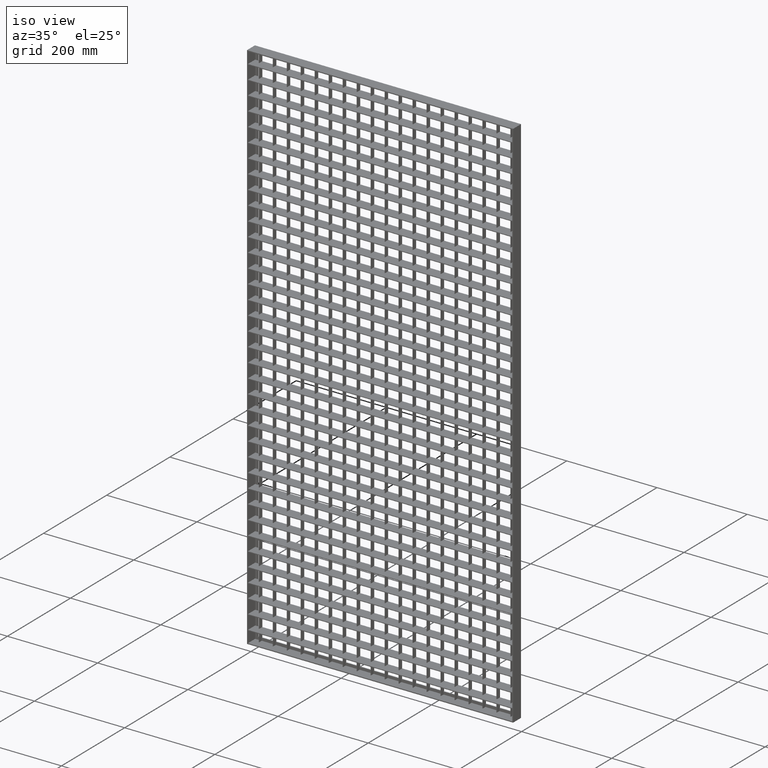
[diagram: clean part render]
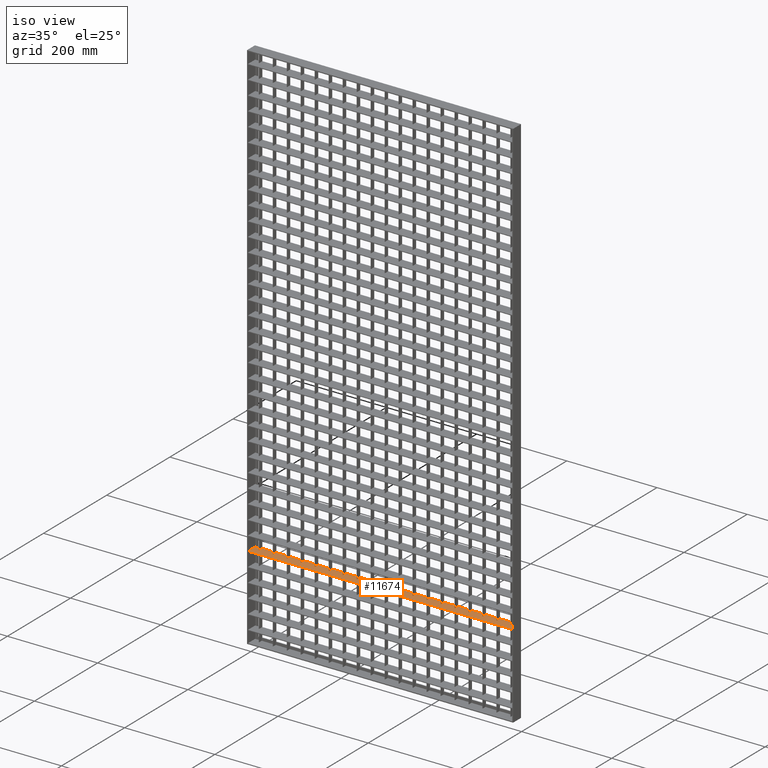
[diagram: same view with one face highlighted and labeled with its STEP entity id]
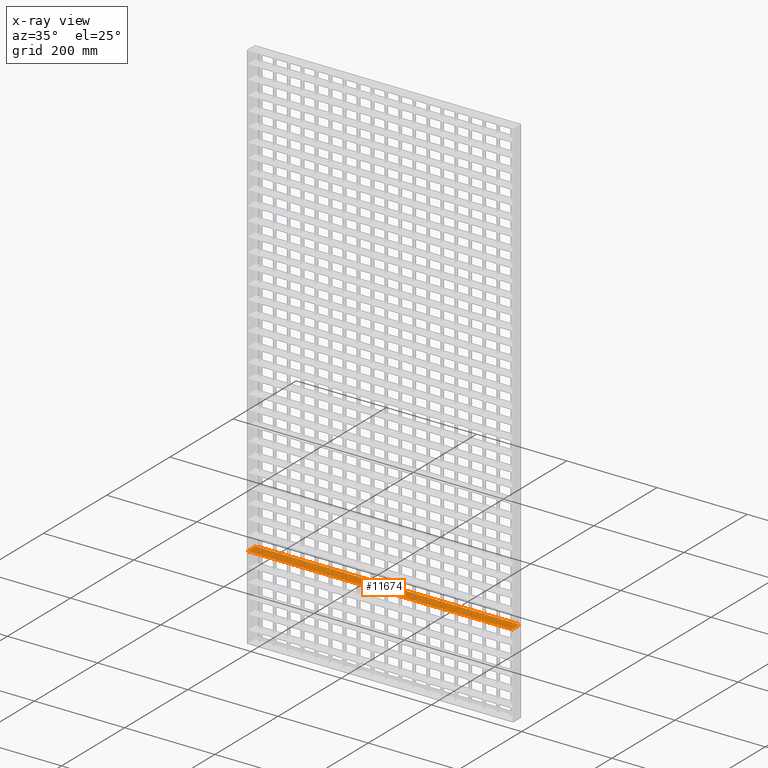
[diagram: x-ray of the same camera — body ghosted, the highlighted face saturated]
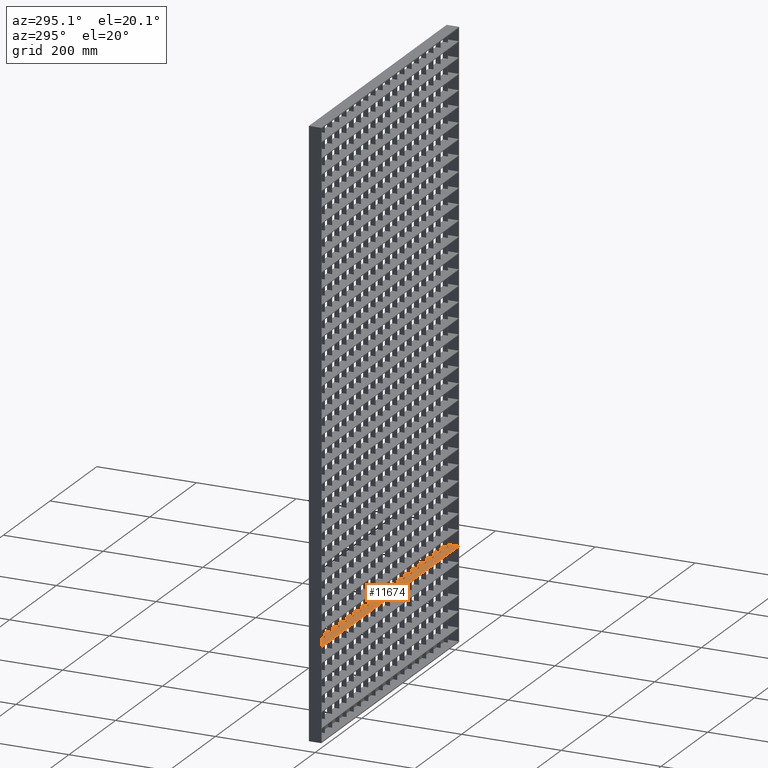
[diagram: same view with one face highlighted and labeled with its STEP entity id]
A machine part, iso view. The second image highlights one B-rep face of the part: STEP entity #11674.
The next image is the same camera in x-ray: the body ghosted, the highlighted face saturated — about 0% of this face is hidden behind the body in this view.
A second angle (auxiliary view) of the same face is appended — the face is thin or edge-on in the first view.
In plain terms, the highlighted planar face has unit normal (0, 0, -1).
Its self-contained STEP definition (entity closure, byte-faithful):
#42 = VERTEX_POINT ( 'NONE', #82207 ) ;
#110 = VECTOR ( 'NONE', #4359, 1000.000000000000000 ) ;
#202 = CARTESIAN_POINT ( 'NONE',  ( 613.0449595727361600, 12.50000000000018100, -1003.749999999999700 ) ) ;
#205 = EDGE_CURVE ( 'NONE', #89269, #24636, #65848, .T. ) ;
#236 = ORIENTED_EDGE ( 'NONE', *, *, #33131, .T. ) ;
#441 = VERTEX_POINT ( 'NONE', #58534 ) ;
#720 = DIRECTION ( 'NONE',  ( -1.000000000000000000, -4.336808689942013800E-016, 0.0000000000000000000 ) ) ;
#945 = DIRECTION ( 'NONE',  ( 0.0000000000000000000, 1.000000000000000000, 0.0000000000000000000 ) ) ;
#1395 = EDGE_CURVE ( 'NONE', #29123, #3123, #1601, .T. ) ;
#1558 = CARTESIAN_POINT ( 'NONE',  ( 613.0449595727361600, 2.499999999999915600, -1003.749999999999700 ) ) ;
#1601 = LINE ( 'NONE', #44226, #65554 ) ;
#1652 = ORIENTED_EDGE ( 'NONE', *, *, #49683, .T. ) ;
#1704 = CARTESIAN_POINT ( 'NONE',  ( 108.4999999999999300, 12.50000000000000000, -1003.749999999999700 ) ) ;
#1795 = ORIENTED_EDGE ( 'NONE', *, *, #67513, .F. ) ;
#1849 = LINE ( 'NONE', #95614, #13090 ) ;
#1877 = CARTESIAN_POINT ( 'NONE',  ( 357.5000000000002300, 2.500000000000000400, -1003.749999999999700 ) ) ;
#1901 = LINE ( 'NONE', #83325, #39453 ) ;
#2281 = CARTESIAN_POINT ( 'NONE',  ( 613.0449595727361600, 2.499999999999943200, -1003.749999999999700 ) ) ;
#2318 = VECTOR ( 'NONE', #55972, 1000.000000000000000 ) ;
#2421 = CARTESIAN_POINT ( 'NONE',  ( 232.4999999999998900, 2.500000000000000000, -1003.749999999999700 ) ) ;
#2647 = DIRECTION ( 'NONE',  ( 1.000000000000000000, -4.336808689942013800E-016, 0.0000000000000000000 ) ) ;
#2748 = DIRECTION ( 'NONE',  ( -1.000000000000000000, -4.336808689942013800E-016, 0.0000000000000000000 ) ) ;
#3123 = VERTEX_POINT ( 'NONE', #11542 ) ;
#3388 = LINE ( 'NONE', #44167, #40936 ) ;
#3500 = ORIENTED_EDGE ( 'NONE', *, *, #38764, .T. ) ;
#3708 = VERTEX_POINT ( 'NONE', #37649 ) ;
#3934 = CARTESIAN_POINT ( 'NONE',  ( 2.000000000000002700, -12.50000000000000000, -1003.749999999999700 ) ) ;
#4057 = EDGE_CURVE ( 'NONE', #90956, #16240, #18592, .T. ) ;
#4163 = CARTESIAN_POINT ( 'NONE',  ( 388.5000000000000600, -12.49999999999982100, -1003.749999999999700 ) ) ;
#4359 = DIRECTION ( 'NONE',  ( 0.0000000000000000000, -1.000000000000000000, 0.0000000000000000000 ) ) ;
#4361 = CARTESIAN_POINT ( 'NONE',  ( 613.0449595727361600, 12.50000000000018100, -1003.749999999999700 ) ) ;
#4561 = ORIENTED_EDGE ( 'NONE', *, *, #93330, .T. ) ;
#4647 = DIRECTION ( 'NONE',  ( -1.000000000000000000, 0.0000000000000000000, -0.0000000000000000000 ) ) ;
#4677 = VERTEX_POINT ( 'NONE', #29912 ) ;
#4806 = LINE ( 'NONE', #102320, #63727 ) ;
#4962 = EDGE_CURVE ( 'NONE', #89269, #17963, #55493, .T. ) ;
#4965 = CARTESIAN_POINT ( 'NONE',  ( 326.5000000000001700, 2.500000000000000000, -1003.749999999999700 ) ) ;
#4976 = EDGE_CURVE ( 'NONE', #31193, #94251, #100361, .T. ) ;
#5152 = VERTEX_POINT ( 'NONE', #83077 ) ;
#5163 = EDGE_CURVE ( 'NONE', #23339, #39383, #95892, .T. ) ;
#5292 = CARTESIAN_POINT ( 'NONE',  ( 170.4999999999999400, 12.50000000000000000, -1003.749999999999700 ) ) ;
#5377 = VERTEX_POINT ( 'NONE', #69439 ) ;
#5552 = CARTESIAN_POINT ( 'NONE',  ( 613.0449595727361600, 2.499999999999956900, -1003.749999999999700 ) ) ;
#5857 = DIRECTION ( 'NONE',  ( -1.000000000000000000, -4.336808689942013800E-016, 0.0000000000000000000 ) ) ;
#5939 = EDGE_CURVE ( 'NONE', #46259, #37207, #60737, .T. ) ;
#5953 = EDGE_CURVE ( 'NONE', #11746, #14138, #79433, .T. ) ;
#6151 = LINE ( 'NONE', #89842, #50072 ) ;
#6237 = CARTESIAN_POINT ( 'NONE',  ( 140.4999999999999700, -12.49999999999982100, -1003.749999999999700 ) ) ;
#6701 = CARTESIAN_POINT ( 'NONE',  ( 613.0449595727361600, 2.499999999999969400, -1003.749999999999700 ) ) ;
#6751 = DIRECTION ( 'NONE',  ( 0.0000000000000000000, 1.000000000000000000, 0.0000000000000000000 ) ) ;
#6802 = ORIENTED_EDGE ( 'NONE', *, *, #55025, .T. ) ;
#7161 = DIRECTION ( 'NONE',  ( 8.673617379884035500E-016, 1.000000000000000000, 0.0000000000000000000 ) ) ;
#7254 = VECTOR ( 'NONE', #57335, 1000.000000000000000 ) ;
#7832 = CARTESIAN_POINT ( 'NONE',  ( 8.000000000000007100, 12.49999999999999500, -1003.749999999999700 ) ) ;
#8109 = DIRECTION ( 'NONE',  ( 0.0000000000000000000, 1.000000000000000000, 0.0000000000000000000 ) ) ;
#8322 = DIRECTION ( 'NONE',  ( -1.000000000000000000, -4.336808689942013800E-016, 0.0000000000000000000 ) ) ;
#8408 = VECTOR ( 'NONE', #83691, 1000.000000000000000 ) ;
#8738 = VECTOR ( 'NONE', #13204, 1000.000000000000000 ) ;
#8784 = LINE ( 'NONE', #55817, #91465 ) ;
#8892 = CARTESIAN_POINT ( 'NONE',  ( 613.0449595727361600, 12.50000000000018100, -1003.749999999999700 ) ) ;
#9134 = LINE ( 'NONE', #24253, #12844 ) ;
#9177 = LINE ( 'NONE', #100597, #19208 ) ;
#9349 = DIRECTION ( 'NONE',  ( -1.000000000000000000, -3.061616997868382600E-016, 0.0000000000000000000 ) ) ;
#9392 = ORIENTED_EDGE ( 'NONE', *, *, #20008, .T. ) ;
#9572 = CARTESIAN_POINT ( 'NONE',  ( 450.5000000000001100, 12.50000000000013100, -1003.749999999999700 ) ) ;
#9618 = CARTESIAN_POINT ( 'NONE',  ( 325.5000000000001100, 2.500000000000000400, -1003.749999999999700 ) ) ;
#9796 = VECTOR ( 'NONE', #74243, 1000.000000000000000 ) ;
#9842 = LINE ( 'NONE', #18203, #36139 ) ;
#9845 = EDGE_CURVE ( 'NONE', #81212, #103337, #72389, .T. ) ;
#9904 = VECTOR ( 'NONE', #45956, 1000.000000000000000 ) ;
#9987 = CARTESIAN_POINT ( 'NONE',  ( 613.0449595727361600, -12.49999999999982100, -1003.749999999999700 ) ) ;
#10040 = ORIENTED_EDGE ( 'NONE', *, *, #44244, .T. ) ;
#10068 = CARTESIAN_POINT ( 'NONE',  ( 263.4999999999999400, 2.499999999999999600, -1003.749999999999700 ) ) ;
#10113 = ORIENTED_EDGE ( 'NONE', *, *, #5939, .F. ) ;
#10230 = VECTOR ( 'NONE', #33084, 1000.000000000000000 ) ;
#10479 = VECTOR ( 'NONE', #87881, 1000.000000000000000 ) ;
#10599 = CARTESIAN_POINT ( 'NONE',  ( 294.4999999999999400, 12.50000000000000000, -1003.749999999999700 ) ) ;
#10903 = VECTOR ( 'NONE', #12877, 1000.000000000000000 ) ;
#11211 = DIRECTION ( 'NONE',  ( -1.000000000000000000, -4.336808689942013800E-016, 0.0000000000000000000 ) ) ;
#11542 = CARTESIAN_POINT ( 'NONE',  ( 481.5000000000000600, 12.50000000000014000, -1003.749999999999700 ) ) ;
#11564 = VERTEX_POINT ( 'NONE', #76094 ) ;
#11674 = ADVANCED_FACE ( 'NONE', ( #19588 ), #69462, .F. ) ;
#11746 = VERTEX_POINT ( 'NONE', #86884 ) ;
#11970 = DIRECTION ( 'NONE',  ( 1.000000000000000000, 0.0000000000000000000, 0.0000000000000000000 ) ) ;
#12273 = DIRECTION ( 'NONE',  ( 0.0000000000000000000, -1.000000000000000000, 0.0000000000000000000 ) ) ;
#12302 = EDGE_CURVE ( 'NONE', #26126, #42, #33345, .T. ) ;
#12433 = VERTEX_POINT ( 'NONE', #1877 ) ;
#12640 = EDGE_CURVE ( 'NONE', #37207, #18293, #30734, .T. ) ;
#12844 = VECTOR ( 'NONE', #15201, 1000.000000000000000 ) ;
#12860 = VECTOR ( 'NONE', #73663, 1000.000000000000000 ) ;
#12877 = DIRECTION ( 'NONE',  ( 0.0000000000000000000, 1.000000000000000000, 0.0000000000000000000 ) ) ;
#13027 = CARTESIAN_POINT ( 'NONE',  ( 588.0000000000000000, -12.50000000000000700, -1003.749999999999700 ) ) ;
#13090 = VECTOR ( 'NONE', #31903, 1000.000000000000000 ) ;
#13172 = CARTESIAN_POINT ( 'NONE',  ( 295.0000000000000600, 10.50000000000000500, -1003.749999999999700 ) ) ;
#13204 = DIRECTION ( 'NONE',  ( -1.000000000000000000, -3.061616997868382600E-016, 0.0000000000000000000 ) ) ;
#13257 = ORIENTED_EDGE ( 'NONE', *, *, #26175, .F. ) ;
#13343 = VERTEX_POINT ( 'NONE', #47529 ) ;
#13595 = EDGE_CURVE ( 'NONE', #39146, #12433, #35469, .T. ) ;
#13849 = EDGE_CURVE ( 'NONE', #5152, #65743, #9177, .T. ) ;
#14136 = VERTEX_POINT ( 'NONE', #88321 ) ;
#14138 = VERTEX_POINT ( 'NONE', #71568 ) ;
#14238 = CARTESIAN_POINT ( 'NONE',  ( 326.5000000000001100, 12.50000000000009200, -1003.749999999999700 ) ) ;
#14430 = VERTEX_POINT ( 'NONE', #5292 ) ;
#14619 = VECTOR ( 'NONE', #72587, 1000.000000000000000 ) ;
#14941 = EDGE_CURVE ( 'NONE', #49100, #55459, #37676, .T. ) ;
#15119 = EDGE_CURVE ( 'NONE', #65661, #28619, #42623, .T. ) ;
#15195 = VERTEX_POINT ( 'NONE', #64597 ) ;
#15201 = DIRECTION ( 'NONE',  ( -1.000000000000000000, -4.336808689942013800E-016, 0.0000000000000000000 ) ) ;
#15387 = VERTEX_POINT ( 'NONE', #3934 ) ;
#15592 = EDGE_CURVE ( 'NONE', #15195, #49100, #97645, .T. ) ;
#15678 = VERTEX_POINT ( 'NONE', #77119 ) ;
#15686 = CARTESIAN_POINT ( 'NONE',  ( 480.5000000000000600, 12.50000000000014000, -1003.749999999999700 ) ) ;
#15768 = CARTESIAN_POINT ( 'NONE',  ( 108.4999999999999300, -12.49999999999982100, -1003.749999999999700 ) ) ;
#15918 = VERTEX_POINT ( 'NONE', #56436 ) ;
#16027 = VECTOR ( 'NONE', #103528, 1000.000000000000000 ) ;
#16166 = EDGE_CURVE ( 'NONE', #93830, #94491, #1901, .T. ) ;
#16240 = VERTEX_POINT ( 'NONE', #71621 ) ;
#16510 = CARTESIAN_POINT ( 'NONE',  ( 357.5000000000001700, -12.49999999999982100, -1003.749999999999700 ) ) ;
#16795 = EDGE_CURVE ( 'NONE', #43898, #3123, #63211, .T. ) ;
#16830 = VECTOR ( 'NONE', #68533, 1000.000000000000000 ) ;
#16862 = VERTEX_POINT ( 'NONE', #22786 ) ;
#16948 = EDGE_CURVE ( 'NONE', #43127, #18293, #59397, .T. ) ;
#17047 = ORIENTED_EDGE ( 'NONE', *, *, #88373, .F. ) ;
#17126 = CARTESIAN_POINT ( 'NONE',  ( 588.0000000000000000, -12.49999999999982100, -1003.749999999999700 ) ) ;
#17190 = EDGE_CURVE ( 'NONE', #16862, #11746, #84369, .T. ) ;
#17203 = CARTESIAN_POINT ( 'NONE',  ( 388.5000000000000600, 12.50000000000011200, -1003.749999999999700 ) ) ;
#17773 = ORIENTED_EDGE ( 'NONE', *, *, #205, .F. ) ;
#17848 = CARTESIAN_POINT ( 'NONE',  ( 449.5000000000001100, -12.49999999999982100, -1003.749999999999700 ) ) ;
#17963 = VERTEX_POINT ( 'NONE', #93675 ) ;
#18063 = VECTOR ( 'NONE', #72008, 1000.000000000000000 ) ;
#18203 = CARTESIAN_POINT ( 'NONE',  ( 78.49999999999990100, -12.49999999999982100, -1003.749999999999700 ) ) ;
#18233 = LINE ( 'NONE', #6237, #22059 ) ;
#18237 = ORIENTED_EDGE ( 'NONE', *, *, #16948, .T. ) ;
#18293 = VERTEX_POINT ( 'NONE', #76104 ) ;
#18592 = LINE ( 'NONE', #68413, #56209 ) ;
#18934 = ORIENTED_EDGE ( 'NONE', *, *, #5163, .F. ) ;
#19208 = VECTOR ( 'NONE', #28493, 1000.000000000000000 ) ;
#19229 = LINE ( 'NONE', #71374, #101897 ) ;
#19588 = FACE_OUTER_BOUND ( 'NONE', #94919, .T. ) ;
#19617 = CARTESIAN_POINT ( 'NONE',  ( 481.5000000000000600, 2.500000000000000400, -1003.749999999999700 ) ) ;
#19789 = ORIENTED_EDGE ( 'NONE', *, *, #13849, .F. ) ;
#20008 = EDGE_CURVE ( 'NONE', #71367, #78992, #65866, .T. ) ;
#20045 = ORIENTED_EDGE ( 'NONE', *, *, #84305, .T. ) ;
#20334 = CARTESIAN_POINT ( 'NONE',  ( 613.0449595727361600, 2.500000000000258900, -1003.749999999999700 ) ) ;
#20392 = VECTOR ( 'NONE', #25417, 1000.000000000000000 ) ;
#20522 = VERTEX_POINT ( 'NONE', #23334 ) ;
#20728 = DIRECTION ( 'NONE',  ( 1.000000000000000000, -4.336808689942013800E-016, 0.0000000000000000000 ) ) ;
#20795 = VECTOR ( 'NONE', #75393, 1000.000000000000000 ) ;
#20803 = DIRECTION ( 'NONE',  ( -1.000000000000000000, -3.061616997868382600E-016, 0.0000000000000000000 ) ) ;
#20900 = DIRECTION ( 'NONE',  ( 0.0000000000000000000, -1.000000000000000000, 0.0000000000000000000 ) ) ;
#20941 = DIRECTION ( 'NONE',  ( 1.000000000000000000, -4.336808689942013800E-016, 0.0000000000000000000 ) ) ;
#21144 = VECTOR ( 'NONE', #5857, 1000.000000000000000 ) ;
#21255 = LINE ( 'NONE', #98153, #40029 ) ;
#21406 = LINE ( 'NONE', #37764, #60319 ) ;
#21446 = DIRECTION ( 'NONE',  ( 0.0000000000000000000, 0.0000000000000000000, -1.000000000000000000 ) ) ;
#21667 = CARTESIAN_POINT ( 'NONE',  ( 573.5000000000001100, 2.500000000000000400, -1003.749999999999700 ) ) ;
#21800 = EDGE_CURVE ( 'NONE', #23339, #88993, #92895, .T. ) ;
#21944 = CARTESIAN_POINT ( 'NONE',  ( 356.5000000000001700, 12.50000000000010300, -1003.749999999999700 ) ) ;
#22059 = VECTOR ( 'NONE', #30017, 1000.000000000000000 ) ;
#22108 = ORIENTED_EDGE ( 'NONE', *, *, #16795, .F. ) ;
#22132 = ORIENTED_EDGE ( 'NONE', *, *, #13595, .F. ) ;
#22198 = VECTOR ( 'NONE', #2748, 1000.000000000000000 ) ;
#22236 = DIRECTION ( 'NONE',  ( 1.000000000000000000, 0.0000000000000000000, 0.0000000000000000000 ) ) ;
#22506 = VECTOR ( 'NONE', #40734, 1000.000000000000000 ) ;
#22582 = VECTOR ( 'NONE', #22236, 1000.000000000000000 ) ;
#22786 = CARTESIAN_POINT ( 'NONE',  ( 202.4999999999999100, 2.500000000000000400, -1003.749999999999700 ) ) ;
#23019 = ORIENTED_EDGE ( 'NONE', *, *, #39734, .F. ) ;
#23323 = CARTESIAN_POINT ( 'NONE',  ( 613.0449595727361600, 12.50000000000018100, -1003.749999999999700 ) ) ;
#23334 = CARTESIAN_POINT ( 'NONE',  ( 582.0000000000001100, 12.50000000000000500, -1003.749999999999700 ) ) ;
#23339 = VERTEX_POINT ( 'NONE', #73850 ) ;
#23362 = EDGE_CURVE ( 'NONE', #57738, #94220, #31080, .T. ) ;
#23691 = EDGE_CURVE ( 'NONE', #75179, #73228, #66978, .T. ) ;
#24253 = CARTESIAN_POINT ( 'NONE',  ( 613.0449595727361600, 2.500000000000165200, -1003.749999999999700 ) ) ;
#24334 = CARTESIAN_POINT ( 'NONE',  ( 419.5000000000001100, 12.50000000000012300, -1003.749999999999700 ) ) ;
#24636 = VERTEX_POINT ( 'NONE', #65339 ) ;
#25385 = ORIENTED_EDGE ( 'NONE', *, *, #44362, .T. ) ;
#25413 = VERTEX_POINT ( 'NONE', #66257 ) ;
#25417 = DIRECTION ( 'NONE',  ( 0.0000000000000000000, -1.000000000000000000, 0.0000000000000000000 ) ) ;
#25487 = EDGE_CURVE ( 'NONE', #25413, #103989, #101550, .T. ) ;
#26084 = CARTESIAN_POINT ( 'NONE',  ( 512.5000000000002300, 2.500000000000000900, -1003.749999999999700 ) ) ;
#26126 = VERTEX_POINT ( 'NONE', #70827 ) ;
#26175 = EDGE_CURVE ( 'NONE', #29123, #46259, #46235, .T. ) ;
#26178 = LINE ( 'NONE', #2281, #47531 ) ;
#26449 = EDGE_CURVE ( 'NONE', #94220, #39111, #9842, .T. ) ;
#26454 = CARTESIAN_POINT ( 'NONE',  ( 613.0449595727361600, 12.50000000000018100, -1003.749999999999700 ) ) ;
#26820 = ORIENTED_EDGE ( 'NONE', *, *, #51811, .T. ) ;
#26864 = CARTESIAN_POINT ( 'NONE',  ( 613.0449595727361600, 2.500000000000233100, -1003.749999999999700 ) ) ;
#26872 = LINE ( 'NONE', #4163, #78207 ) ;
#26989 = ORIENTED_EDGE ( 'NONE', *, *, #63489, .F. ) ;
#27542 = VERTEX_POINT ( 'NONE', #35045 ) ;
#27565 = VECTOR ( 'NONE', #7161, 1000.000000000000000 ) ;
#27615 = ORIENTED_EDGE ( 'NONE', *, *, #103588, .F. ) ;
#28005 = LINE ( 'NONE', #73457, #79334 ) ;
#28124 = DIRECTION ( 'NONE',  ( 0.0000000000000000000, -1.000000000000000000, 0.0000000000000000000 ) ) ;
#28223 = EDGE_CURVE ( 'NONE', #69204, #49887, #26872, .T. ) ;
#28461 = ORIENTED_EDGE ( 'NONE', *, *, #60588, .T. ) ;
#28493 = DIRECTION ( 'NONE',  ( 0.0000000000000000000, 1.000000000000000000, 0.0000000000000000000 ) ) ;
#28619 = VERTEX_POINT ( 'NONE', #10599 ) ;
#28691 = EDGE_CURVE ( 'NONE', #102134, #71632, #88387, .T. ) ;
#28818 = LINE ( 'NONE', #103224, #62726 ) ;
#28858 = ORIENTED_EDGE ( 'NONE', *, *, #93438, .T. ) ;
#29012 = LINE ( 'NONE', #26454, #69166 ) ;
#29123 = VERTEX_POINT ( 'NONE', #40250 ) ;
#29286 = VECTOR ( 'NONE', #76766, 1000.000000000000000 ) ;
#29487 = ORIENTED_EDGE ( 'NONE', *, *, #48122, .F. ) ;
#29585 = CARTESIAN_POINT ( 'NONE',  ( 582.0000000000000000, 10.50000000000045100, -1003.749999999999700 ) ) ;
#29866 = LINE ( 'NONE', #6701, #9904 ) ;
#29912 = CARTESIAN_POINT ( 'NONE',  ( 418.5000000000001100, 12.50000000000012300, -1003.749999999999700 ) ) ;
#30017 = DIRECTION ( 'NONE',  ( 0.0000000000000000000, -1.000000000000000000, 0.0000000000000000000 ) ) ;
#30116 = CARTESIAN_POINT ( 'NONE',  ( 613.0449595727361600, 12.50000000000018100, -1003.749999999999700 ) ) ;
#30309 = EDGE_CURVE ( 'NONE', #15195, #43145, #100272, .T. ) ;
#30484 = DIRECTION ( 'NONE',  ( -1.000000000000000000, -3.061616997868382600E-016, 0.0000000000000000000 ) ) ;
#30598 = DIRECTION ( 'NONE',  ( 0.0000000000000000000, 1.000000000000000000, 0.0000000000000000000 ) ) ;
#30654 = ORIENTED_EDGE ( 'NONE', *, *, #79168, .T. ) ;
#30707 = VECTOR ( 'NONE', #60162, 1000.000000000000000 ) ;
#30734 = LINE ( 'NONE', #76752, #80882 ) ;
#30843 = ORIENTED_EDGE ( 'NONE', *, *, #87146, .F. ) ;
#30875 = CARTESIAN_POINT ( 'NONE',  ( 613.0449595727361600, 12.50000000000018100, -1003.749999999999700 ) ) ;
#31080 = LINE ( 'NONE', #50403, #98721 ) ;
#31193 = VERTEX_POINT ( 'NONE', #42972 ) ;
#31278 = CARTESIAN_POINT ( 'NONE',  ( 232.4999999999999400, -12.49999999999982100, -1003.749999999999700 ) ) ;
#31465 = CARTESIAN_POINT ( 'NONE',  ( 543.5000000000001100, 12.50000000000016000, -1003.749999999999700 ) ) ;
#31773 = LINE ( 'NONE', #4361, #45585 ) ;
#31903 = DIRECTION ( 'NONE',  ( 0.0000000000000000000, -1.000000000000000000, 0.0000000000000000000 ) ) ;
#32057 = DIRECTION ( 'NONE',  ( 0.0000000000000000000, -1.000000000000000000, 0.0000000000000000000 ) ) ;
#32377 = CARTESIAN_POINT ( 'NONE',  ( 480.5000000000000600, -12.49999999999982100, -1003.749999999999700 ) ) ;
#32389 = CARTESIAN_POINT ( 'NONE',  ( 613.0449595727361600, 2.499999999999983100, -1003.749999999999700 ) ) ;
#32557 = VECTOR ( 'NONE', #6751, 1000.000000000000000 ) ;
#33084 = DIRECTION ( 'NONE',  ( 1.000000000000000000, -4.336808689942013800E-016, 0.0000000000000000000 ) ) ;
#33131 = EDGE_CURVE ( 'NONE', #56837, #80181, #49674, .T. ) ;
#33218 = DIRECTION ( 'NONE',  ( 0.0000000000000000000, 1.000000000000000000, 0.0000000000000000000 ) ) ;
#33243 = ORIENTED_EDGE ( 'NONE', *, *, #35810, .T. ) ;
#33345 = LINE ( 'NONE', #80644, #57198 ) ;
#33756 = DIRECTION ( 'NONE',  ( 1.000000000000000000, -4.336808689942013800E-016, 0.0000000000000000000 ) ) ;
#33767 = VECTOR ( 'NONE', #45229, 1000.000000000000000 ) ;
#33787 = CARTESIAN_POINT ( 'NONE',  ( 588.0000000000001100, 10.50000000000000500, -1003.749999999999700 ) ) ;
#33936 = EDGE_CURVE ( 'NONE', #24636, #69204, #93237, .T. ) ;
#33954 = DIRECTION ( 'NONE',  ( 0.0000000000000000000, -1.000000000000000000, 0.0000000000000000000 ) ) ;
#34204 = EDGE_CURVE ( 'NONE', #39128, #88993, #76882, .T. ) ;
#34369 = ORIENTED_EDGE ( 'NONE', *, *, #30309, .F. ) ;
#34840 = LINE ( 'NONE', #40183, #2318 ) ;
#34910 = ORIENTED_EDGE ( 'NONE', *, *, #23362, .T. ) ;
#34926 = ORIENTED_EDGE ( 'NONE', *, *, #1395, .T. ) ;
#34979 = CARTESIAN_POINT ( 'NONE',  ( 613.0449595727361600, 2.500000000000179000, -1003.749999999999700 ) ) ;
#35045 = CARTESIAN_POINT ( 'NONE',  ( 449.5000000000001100, 12.50000000000013100, -1003.749999999999700 ) ) ;
#35469 = LINE ( 'NONE', #99221, #45548 ) ;
#35501 = EDGE_CURVE ( 'NONE', #43145, #83582, #61550, .T. ) ;
#35583 = VERTEX_POINT ( 'NONE', #2421 ) ;
#35810 = EDGE_CURVE ( 'NONE', #13343, #42551, #47649, .T. ) ;
#35862 = CARTESIAN_POINT ( 'NONE',  ( 140.4999999999999700, 12.50000000000003700, -1003.749999999999700 ) ) ;
#36139 = VECTOR ( 'NONE', #33954, 1000.000000000000000 ) ;
#36414 = ORIENTED_EDGE ( 'NONE', *, *, #34204, .F. ) ;
#37207 = VERTEX_POINT ( 'NONE', #26084 ) ;
#37442 = DIRECTION ( 'NONE',  ( -1.000000000000000000, -4.336808689942013800E-016, 0.0000000000000000000 ) ) ;
#37649 = CARTESIAN_POINT ( 'NONE',  ( 233.4999999999999700, 12.50000000000006600, -1003.749999999999700 ) ) ;
#37676 = LINE ( 'NONE', #45996, #110 ) ;
#37764 = CARTESIAN_POINT ( 'NONE',  ( 613.0449595727361600, 12.50000000000018100, -1003.749999999999700 ) ) ;
#37936 = CARTESIAN_POINT ( 'NONE',  ( 264.4999999999999400, 12.50000000000007300, -1003.749999999999700 ) ) ;
#37953 = CARTESIAN_POINT ( 'NONE',  ( 613.0449595727361600, 12.50000000000018100, -1003.749999999999700 ) ) ;
#38031 = CARTESIAN_POINT ( 'NONE',  ( 613.0449595727361600, 12.50000000000018100, -1003.749999999999700 ) ) ;
#38161 = LINE ( 'NONE', #67832, #40674 ) ;
#38559 = CARTESIAN_POINT ( 'NONE',  ( 511.5000000000000600, -12.49999999999982100, -1003.749999999999700 ) ) ;
#38627 = ORIENTED_EDGE ( 'NONE', *, *, #86760, .T. ) ;
#38741 = CARTESIAN_POINT ( 'NONE',  ( 77.49999999999990100, 2.500000000000000400, -1003.749999999999700 ) ) ;
#38764 = EDGE_CURVE ( 'NONE', #35583, #13343, #78324, .T. ) ;
#39111 = VERTEX_POINT ( 'NONE', #75722 ) ;
#39128 = VERTEX_POINT ( 'NONE', #43508 ) ;
#39146 = VERTEX_POINT ( 'NONE', #51597 ) ;
#39151 = VECTOR ( 'NONE', #91472, 1000.000000000000000 ) ;
#39383 = VERTEX_POINT ( 'NONE', #21667 ) ;
#39453 = VECTOR ( 'NONE', #51510, 1000.000000000000000 ) ;
#39734 = EDGE_CURVE ( 'NONE', #60549, #441, #28005, .T. ) ;
#39765 = EDGE_CURVE ( 'NONE', #15918, #98851, #103054, .T. ) ;
#39817 = CARTESIAN_POINT ( 'NONE',  ( 449.5000000000001100, 2.500000000000000400, -1003.749999999999700 ) ) ;
#40029 = VECTOR ( 'NONE', #90813, 1000.000000000000000 ) ;
#40069 = CARTESIAN_POINT ( 'NONE',  ( 294.4999999999999400, 2.499999999999999100, -1003.749999999999700 ) ) ;
#40160 = DIRECTION ( 'NONE',  ( 0.0000000000000000000, 1.000000000000000000, 0.0000000000000000000 ) ) ;
#40183 = CARTESIAN_POINT ( 'NONE',  ( 2.000000000000002700, -12.50000000000000000, -1003.749999999999700 ) ) ;
#40250 = CARTESIAN_POINT ( 'NONE',  ( 511.5000000000000600, 12.50000000000014900, -1003.749999999999700 ) ) ;
#40674 = VECTOR ( 'NONE', #42932, 1000.000000000000000 ) ;
#40734 = DIRECTION ( 'NONE',  ( 0.0000000000000000000, 1.000000000000000000, 0.0000000000000000000 ) ) ;
#40936 = VECTOR ( 'NONE', #11970, 1000.000000000000000 ) ;
#41424 = ORIENTED_EDGE ( 'NONE', *, *, #9845, .T. ) ;
#41717 = CARTESIAN_POINT ( 'NONE',  ( 16.49999999999984700, 2.500000000000000400, -1003.749999999999700 ) ) ;
#41737 = ORIENTED_EDGE ( 'NONE', *, *, #15119, .T. ) ;
#41857 = CARTESIAN_POINT ( 'NONE',  ( 511.5000000000000600, 2.500000000000000400, -1003.749999999999700 ) ) ;
#41926 = ORIENTED_EDGE ( 'NONE', *, *, #67786, .F. ) ;
#42314 = ORIENTED_EDGE ( 'NONE', *, *, #67812, .T. ) ;
#42551 = VERTEX_POINT ( 'NONE', #66874 ) ;
#42623 = LINE ( 'NONE', #78850, #32557 ) ;
#42932 = DIRECTION ( 'NONE',  ( 0.0000000000000000000, 1.000000000000000000, 0.0000000000000000000 ) ) ;
#42972 = CARTESIAN_POINT ( 'NONE',  ( 139.4999999999999100, 2.499999999999999600, -1003.749999999999700 ) ) ;
#42984 = ORIENTED_EDGE ( 'NONE', *, *, #12302, .T. ) ;
#43127 = VERTEX_POINT ( 'NONE', #96427 ) ;
#43145 = VERTEX_POINT ( 'NONE', #9618 ) ;
#43166 = CARTESIAN_POINT ( 'NONE',  ( 573.5000000000001100, -12.49999999999982100, -1003.749999999999700 ) ) ;
#43424 = VERTEX_POINT ( 'NONE', #76800 ) ;
#43508 = CARTESIAN_POINT ( 'NONE',  ( 543.5000000000001100, 2.499999999999999600, -1003.749999999999700 ) ) ;
#43517 = LINE ( 'NONE', #26864, #22198 ) ;
#43540 = DIRECTION ( 'NONE',  ( -1.000000000000000000, -3.061616997868382600E-016, 0.0000000000000000000 ) ) ;
#43898 = VERTEX_POINT ( 'NONE', #19617 ) ;
#44167 = CARTESIAN_POINT ( 'NONE',  ( 2.000000000000002700, 10.50000000000000500, -1003.749999999999700 ) ) ;
#44226 = CARTESIAN_POINT ( 'NONE',  ( 613.0449595727361600, 12.50000000000018100, -1003.749999999999700 ) ) ;
#44244 = EDGE_CURVE ( 'NONE', #14138, #5377, #21406, .T. ) ;
#44362 = EDGE_CURVE ( 'NONE', #55459, #65661, #28818, .T. ) ;
#44623 = VECTOR ( 'NONE', #32057, 1000.000000000000000 ) ;
#44802 = LINE ( 'NONE', #17126, #89871 ) ;
#45229 = DIRECTION ( 'NONE',  ( -1.000000000000000000, -3.061616997868382600E-016, 0.0000000000000000000 ) ) ;
#45548 = VECTOR ( 'NONE', #2647, 1000.000000000000000 ) ;
#45585 = VECTOR ( 'NONE', #20803, 1000.000000000000000 ) ;
#45656 = VECTOR ( 'NONE', #28124, 1000.000000000000000 ) ;
#45816 = VECTOR ( 'NONE', #59275, 1000.000000000000000 ) ;
#45862 = DIRECTION ( 'NONE',  ( -1.000000000000000000, -3.061616997868382600E-016, 0.0000000000000000000 ) ) ;
#45956 = DIRECTION ( 'NONE',  ( 1.000000000000000000, -4.336808689942013800E-016, 0.0000000000000000000 ) ) ;
#45996 = CARTESIAN_POINT ( 'NONE',  ( 295.4999999999999400, -12.49999999999982100, -1003.749999999999700 ) ) ;
#46118 = ORIENTED_EDGE ( 'NONE', *, *, #28691, .T. ) ;
#46172 = LINE ( 'NONE', #56072, #48817 ) ;
#46235 = LINE ( 'NONE', #38559, #83783 ) ;
#46259 = VERTEX_POINT ( 'NONE', #41857 ) ;
#46315 = EDGE_CURVE ( 'NONE', #73401, #15387, #66528, .T. ) ;
#46663 = DIRECTION ( 'NONE',  ( 0.0000000000000000000, -1.000000000000000000, 0.0000000000000000000 ) ) ;
#46702 = DIRECTION ( 'NONE',  ( 0.0000000000000000000, -1.000000000000000000, 0.0000000000000000000 ) ) ;
#46715 = DIRECTION ( 'NONE',  ( -1.000000000000000000, -4.336808689942013800E-016, 0.0000000000000000000 ) ) ;
#46852 = CARTESIAN_POINT ( 'NONE',  ( 613.0449595727361600, 12.50000000000018100, -1003.749999999999700 ) ) ;
#47529 = CARTESIAN_POINT ( 'NONE',  ( 232.4999999999999400, 12.50000000000000000, -1003.749999999999700 ) ) ;
#47531 = VECTOR ( 'NONE', #99548, 1000.000000000000000 ) ;
#47649 = LINE ( 'NONE', #38031, #8738 ) ;
#48122 = EDGE_CURVE ( 'NONE', #75674, #102556, #3388, .T. ) ;
#48147 = VECTOR ( 'NONE', #20941, 1000.000000000000000 ) ;
#48602 = LINE ( 'NONE', #81108, #7254 ) ;
#48812 = ORIENTED_EDGE ( 'NONE', *, *, #16166, .T. ) ;
#48817 = VECTOR ( 'NONE', #96262, 1000.000000000000000 ) ;
#49100 = VERTEX_POINT ( 'NONE', #101365 ) ;
#49157 = EDGE_CURVE ( 'NONE', #20522, #25413, #55754, .T. ) ;
#49674 = LINE ( 'NONE', #30875, #93433 ) ;
#49683 = EDGE_CURVE ( 'NONE', #42, #84829, #31773, .T. ) ;
#49887 = VERTEX_POINT ( 'NONE', #17203 ) ;
#50072 = VECTOR ( 'NONE', #945, 1000.000000000000000 ) ;
#50403 = CARTESIAN_POINT ( 'NONE',  ( 613.0449595727361600, 12.50000000000018100, -1003.749999999999700 ) ) ;
#50605 = EDGE_CURVE ( 'NONE', #14136, #103335, #101847, .T. ) ;
#50773 = ORIENTED_EDGE ( 'NONE', *, *, #14941, .T. ) ;
#51115 = VERTEX_POINT ( 'NONE', #73588 ) ;
#51174 = VECTOR ( 'NONE', #12273, 1000.000000000000000 ) ;
#51510 = DIRECTION ( 'NONE',  ( 0.0000000000000000000, -1.000000000000000000, 0.0000000000000000000 ) ) ;
#51597 = CARTESIAN_POINT ( 'NONE',  ( 356.5000000000001700, 2.500000000000000400, -1003.749999999999700 ) ) ;
#51805 = DIRECTION ( 'NONE',  ( 0.0000000000000000000, 1.000000000000000000, 0.0000000000000000000 ) ) ;
#51811 = EDGE_CURVE ( 'NONE', #78992, #57738, #84135, .T. ) ;
#51833 = ORIENTED_EDGE ( 'NONE', *, *, #67427, .T. ) ;
#52134 = LINE ( 'NONE', #86747, #79603 ) ;
#52135 = VECTOR ( 'NONE', #37442, 1000.000000000000000 ) ;
#52282 = CARTESIAN_POINT ( 'NONE',  ( 480.5000000000000600, 2.500000000000000400, -1003.749999999999700 ) ) ;
#52568 = VERTEX_POINT ( 'NONE', #99630 ) ;
#52831 = ORIENTED_EDGE ( 'NONE', *, *, #54123, .T. ) ;
#52857 = DIRECTION ( 'NONE',  ( 0.0000000000000000000, 1.000000000000000000, 0.0000000000000000000 ) ) ;
#52915 = EDGE_CURVE ( 'NONE', #92669, #5152, #82626, .T. ) ;
#53510 = EDGE_CURVE ( 'NONE', #16240, #3708, #46172, .T. ) ;
#54123 = EDGE_CURVE ( 'NONE', #20522, #441, #76130, .T. ) ;
#54550 = DIRECTION ( 'NONE',  ( -1.000000000000000000, -3.061616997868382600E-016, 0.0000000000000000000 ) ) ;
#54719 = EDGE_CURVE ( 'NONE', #75179, #65743, #78493, .T. ) ;
#54906 = DIRECTION ( 'NONE',  ( -1.000000000000000000, -4.336808689942013800E-016, 0.0000000000000000000 ) ) ;
#55025 = EDGE_CURVE ( 'NONE', #98851, #26126, #73425, .T. ) ;
#55027 = LINE ( 'NONE', #93370, #21144 ) ;
#55459 = VERTEX_POINT ( 'NONE', #58424 ) ;
#55493 = LINE ( 'NONE', #8892, #12860 ) ;
#55596 = CARTESIAN_POINT ( 'NONE',  ( 47.49999999999998600, 2.500000000000000400, -1003.749999999999700 ) ) ;
#55725 = LINE ( 'NONE', #76123, #45656 ) ;
#55754 = LINE ( 'NONE', #29585, #16830 ) ;
#55817 = CARTESIAN_POINT ( 'NONE',  ( 613.0449595727361600, 2.500000000000191400, -1003.749999999999700 ) ) ;
#55955 = CARTESIAN_POINT ( 'NONE',  ( 109.4999999999999300, 2.500000000000000400, -1003.749999999999700 ) ) ;
#55972 = DIRECTION ( 'NONE',  ( 0.0000000000000000000, 1.000000000000000000, 0.0000000000000000000 ) ) ;
#56065 = ORIENTED_EDGE ( 'NONE', *, *, #52915, .F. ) ;
#56072 = CARTESIAN_POINT ( 'NONE',  ( 613.0449595727361600, 12.50000000000018100, -1003.749999999999700 ) ) ;
#56082 = ORIENTED_EDGE ( 'NONE', *, *, #28223, .F. ) ;
#56209 = VECTOR ( 'NONE', #100547, 1000.000000000000000 ) ;
#56288 = ORIENTED_EDGE ( 'NONE', *, *, #54719, .T. ) ;
#56436 = CARTESIAN_POINT ( 'NONE',  ( 16.49999999999984700, 12.49999999999999800, -1003.749999999999700 ) ) ;
#56541 = DIRECTION ( 'NONE',  ( 1.000000000000000000, -4.336808689942013800E-016, 0.0000000000000000000 ) ) ;
#56678 = VERTEX_POINT ( 'NONE', #91657 ) ;
#56837 = VERTEX_POINT ( 'NONE', #21944 ) ;
#57020 = VECTOR ( 'NONE', #88369, 1000.000000000000000 ) ;
#57121 = EDGE_CURVE ( 'NONE', #39383, #60549, #85379, .T. ) ;
#57198 = VECTOR ( 'NONE', #64270, 1000.000000000000000 ) ;
#57335 = DIRECTION ( 'NONE',  ( -1.000000000000000000, -3.061616997868382600E-016, 0.0000000000000000000 ) ) ;
#57738 = VERTEX_POINT ( 'NONE', #1704 ) ;
#57882 = CARTESIAN_POINT ( 'NONE',  ( 77.49999999999990100, -12.49999999999982100, -1003.749999999999700 ) ) ;
#58058 = EDGE_CURVE ( 'NONE', #103337, #51115, #19229, .T. ) ;
#58424 = CARTESIAN_POINT ( 'NONE',  ( 295.4999999999999400, 2.500000000000000400, -1003.749999999999700 ) ) ;
#58449 = ORIENTED_EDGE ( 'NONE', *, *, #65620, .T. ) ;
#58534 = CARTESIAN_POINT ( 'NONE',  ( 574.5000000000002300, 12.50000000000016900, -1003.749999999999700 ) ) ;
#58626 = VECTOR ( 'NONE', #85153, 1000.000000000000000 ) ;
#58653 = ORIENTED_EDGE ( 'NONE', *, *, #35501, .F. ) ;
#58954 = CARTESIAN_POINT ( 'NONE',  ( 171.4999999999999400, -12.49999999999982100, -1003.749999999999700 ) ) ;
#58959 = ORIENTED_EDGE ( 'NONE', *, *, #15592, .T. ) ;
#59223 = VERTEX_POINT ( 'NONE', #24334 ) ;
#59275 = DIRECTION ( 'NONE',  ( 0.0000000000000000000, 1.000000000000000000, 0.0000000000000000000 ) ) ;
#59397 = LINE ( 'NONE', #63810, #76845 ) ;
#60162 = DIRECTION ( 'NONE',  ( 0.0000000000000000000, -1.000000000000000000, 0.0000000000000000000 ) ) ;
#60319 = VECTOR ( 'NONE', #45862, 1000.000000000000000 ) ;
#60549 = VERTEX_POINT ( 'NONE', #103903 ) ;
#60588 = EDGE_CURVE ( 'NONE', #28619, #93830, #48602, .T. ) ;
#60640 = ORIENTED_EDGE ( 'NONE', *, *, #46315, .F. ) ;
#60737 = LINE ( 'NONE', #5552, #48147 ) ;
#61090 = CARTESIAN_POINT ( 'NONE',  ( 108.4999999999999300, 2.500000000000000000, -1003.749999999999700 ) ) ;
#61308 = ORIENTED_EDGE ( 'NONE', *, *, #98040, .F. ) ;
#61383 = VECTOR ( 'NONE', #56541, 1000.000000000000000 ) ;
#61475 = ORIENTED_EDGE ( 'NONE', *, *, #17190, .T. ) ;
#61550 = LINE ( 'NONE', #96216, #66574 ) ;
#61569 = ORIENTED_EDGE ( 'NONE', *, *, #92228, .F. ) ;
#61571 = CARTESIAN_POINT ( 'NONE',  ( 418.5000000000001100, -12.49999999999982100, -1003.749999999999700 ) ) ;
#61681 = CARTESIAN_POINT ( 'NONE',  ( 109.4999999999999300, 12.50000000000002700, -1003.749999999999700 ) ) ;
#61716 = VECTOR ( 'NONE', #85589, 1000.000000000000000 ) ;
#61787 = DIRECTION ( 'NONE',  ( 0.0000000000000000000, -1.000000000000000000, 0.0000000000000000000 ) ) ;
#61946 = VECTOR ( 'NONE', #20728, 1000.000000000000000 ) ;
#62129 = DIRECTION ( 'NONE',  ( -1.000000000000000000, -3.061616997868382600E-016, 0.0000000000000000000 ) ) ;
#62726 = VECTOR ( 'NONE', #8322, 1000.000000000000000 ) ;
#62811 = VECTOR ( 'NONE', #92607, 1000.000000000000000 ) ;
#62972 = EDGE_CURVE ( 'NONE', #4677, #49887, #98273, .T. ) ;
#63211 = LINE ( 'NONE', #78111, #29286 ) ;
#63336 = VECTOR ( 'NONE', #720, 1000.000000000000000 ) ;
#63489 = EDGE_CURVE ( 'NONE', #103335, #59223, #38161, .T. ) ;
#63727 = VECTOR ( 'NONE', #61787, 1000.000000000000000 ) ;
#63810 = CARTESIAN_POINT ( 'NONE',  ( 613.0449595727361600, 12.50000000000018100, -1003.749999999999700 ) ) ;
#64270 = DIRECTION ( 'NONE',  ( 0.0000000000000000000, 1.000000000000000000, 0.0000000000000000000 ) ) ;
#64363 = CARTESIAN_POINT ( 'NONE',  ( 7.999999999999992900, 10.50000000000000500, -1003.749999999999700 ) ) ;
#64549 = ORIENTED_EDGE ( 'NONE', *, *, #33936, .F. ) ;
#64597 = CARTESIAN_POINT ( 'NONE',  ( 325.5000000000001100, 12.50000000000009200, -1003.749999999999700 ) ) ;
#64952 = CARTESIAN_POINT ( 'NONE',  ( 139.4999999999999400, -12.49999999999982100, -1003.749999999999700 ) ) ;
#64966 = CARTESIAN_POINT ( 'NONE',  ( 613.0449595727361600, 12.50000000000018100, -1003.749999999999700 ) ) ;
#65153 = DIRECTION ( 'NONE',  ( 1.000000000000000000, -4.336808689942013800E-016, 0.0000000000000000000 ) ) ;
#65339 = CARTESIAN_POINT ( 'NONE',  ( 387.5000000000000600, 2.500000000000000400, -1003.749999999999700 ) ) ;
#65554 = VECTOR ( 'NONE', #43540, 1000.000000000000000 ) ;
#65620 = EDGE_CURVE ( 'NONE', #14430, #93693, #102939, .T. ) ;
#65661 = VERTEX_POINT ( 'NONE', #40069 ) ;
#65743 = VERTEX_POINT ( 'NONE', #9572 ) ;
#65848 = LINE ( 'NONE', #83918, #30707 ) ;
#65866 = LINE ( 'NONE', #88603, #63336 ) ;
#65879 = ORIENTED_EDGE ( 'NONE', *, *, #4962, .T. ) ;
#65966 = LINE ( 'NONE', #103510, #44623 ) ;
#66152 = VECTOR ( 'NONE', #8109, 1000.000000000000000 ) ;
#66177 = DIRECTION ( 'NONE',  ( -1.000000000000000000, -3.061616997868382600E-016, 0.0000000000000000000 ) ) ;
#66257 = CARTESIAN_POINT ( 'NONE',  ( 582.0000000000000000, 10.50000000000000500, -1003.749999999999700 ) ) ;
#66326 = ORIENTED_EDGE ( 'NONE', *, *, #91986, .F. ) ;
#66528 = LINE ( 'NONE', #9987, #92776 ) ;
#66574 = VECTOR ( 'NONE', #65153, 1000.000000000000000 ) ;
#66872 = ORIENTED_EDGE ( 'NONE', *, *, #53510, .T. ) ;
#66874 = CARTESIAN_POINT ( 'NONE',  ( 202.4999999999999700, 12.50000000000005700, -1003.749999999999700 ) ) ;
#66978 = LINE ( 'NONE', #32377, #18063 ) ;
#66991 = ORIENTED_EDGE ( 'NONE', *, *, #97729, .T. ) ;
#67017 = EDGE_CURVE ( 'NONE', #73228, #43898, #26178, .T. ) ;
#67034 = CARTESIAN_POINT ( 'NONE',  ( 613.0449595727361600, 2.499999999999903200, -1003.749999999999700 ) ) ;
#67427 = EDGE_CURVE ( 'NONE', #3708, #56678, #4806, .T. ) ;
#67455 = LINE ( 'NONE', #67653, #51174 ) ;
#67513 = EDGE_CURVE ( 'NONE', #12433, #17963, #86192, .T. ) ;
#67653 = CARTESIAN_POINT ( 'NONE',  ( 356.5000000000001700, -12.49999999999982100, -1003.749999999999700 ) ) ;
#67786 = EDGE_CURVE ( 'NONE', #56837, #39146, #67455, .T. ) ;
#67812 = EDGE_CURVE ( 'NONE', #27542, #59223, #103658, .T. ) ;
#67832 = CARTESIAN_POINT ( 'NONE',  ( 419.5000000000001100, -12.49999999999982100, -1003.749999999999700 ) ) ;
#68413 = CARTESIAN_POINT ( 'NONE',  ( 263.4999999999999400, -12.49999999999982100, -1003.749999999999700 ) ) ;
#68533 = DIRECTION ( 'NONE',  ( 8.673617379884036500E-016, -1.000000000000000000, 0.0000000000000000000 ) ) ;
#68584 = CARTESIAN_POINT ( 'NONE',  ( 326.5000000000001100, -12.49999999999982100, -1003.749999999999700 ) ) ;
#69055 = ORIENTED_EDGE ( 'NONE', *, *, #4057, .T. ) ;
#69166 = VECTOR ( 'NONE', #9349, 1000.000000000000000 ) ;
#69204 = VERTEX_POINT ( 'NONE', #70887 ) ;
#69439 = CARTESIAN_POINT ( 'NONE',  ( 171.4999999999999400, 12.50000000000004600, -1003.749999999999700 ) ) ;
#69462 = PLANE ( 'NONE',  #102011 ) ;
#69966 = ORIENTED_EDGE ( 'NONE', *, *, #72099, .T. ) ;
#70235 = LINE ( 'NONE', #71968, #27565 ) ;
#70268 = CARTESIAN_POINT ( 'NONE',  ( 170.4999999999999400, 2.499999999999999100, -1003.749999999999700 ) ) ;
#70827 = CARTESIAN_POINT ( 'NONE',  ( 15.49999999999995700, 2.499999999999999600, -1003.749999999999700 ) ) ;
#70887 = CARTESIAN_POINT ( 'NONE',  ( 388.5000000000000600, 2.500000000000000900, -1003.749999999999700 ) ) ;
#71227 = LINE ( 'NONE', #17848, #9796 ) ;
#71367 = VERTEX_POINT ( 'NONE', #55955 ) ;
#71374 = CARTESIAN_POINT ( 'NONE',  ( 46.49999999999987200, -12.49999999999982100, -1003.749999999999700 ) ) ;
#71496 = VECTOR ( 'NONE', #46702, 1000.000000000000000 ) ;
#71557 = LINE ( 'NONE', #37953, #62811 ) ;
#71568 = CARTESIAN_POINT ( 'NONE',  ( 201.4999999999999400, 12.50000000000000000, -1003.749999999999700 ) ) ;
#71621 = CARTESIAN_POINT ( 'NONE',  ( 263.4999999999999400, 12.50000000000000000, -1003.749999999999700 ) ) ;
#71632 = VERTEX_POINT ( 'NONE', #99292 ) ;
#71968 = CARTESIAN_POINT ( 'NONE',  ( 7.999999999999992900, 10.50000000000000500, -1003.749999999999700 ) ) ;
#72008 = DIRECTION ( 'NONE',  ( 0.0000000000000000000, -1.000000000000000000, 0.0000000000000000000 ) ) ;
#72099 = EDGE_CURVE ( 'NONE', #42551, #16862, #21255, .T. ) ;
#72389 = LINE ( 'NONE', #94546, #58626 ) ;
#72499 = CARTESIAN_POINT ( 'NONE',  ( 543.5000000000001100, -12.49999999999982100, -1003.749999999999700 ) ) ;
#72587 = DIRECTION ( 'NONE',  ( -1.000000000000000000, -3.061616997868382600E-016, 0.0000000000000000000 ) ) ;
#72952 = CARTESIAN_POINT ( 'NONE',  ( 78.49999999999990100, 12.50000000000001800, -1003.749999999999700 ) ) ;
#73112 = DIRECTION ( 'NONE',  ( 0.0000000000000000000, 1.000000000000000000, 0.0000000000000000000 ) ) ;
#73228 = VERTEX_POINT ( 'NONE', #52282 ) ;
#73401 = VERTEX_POINT ( 'NONE', #13027 ) ;
#73425 = LINE ( 'NONE', #20334, #52135 ) ;
#73457 = CARTESIAN_POINT ( 'NONE',  ( 574.5000000000002300, -12.49999999999982100, -1003.749999999999700 ) ) ;
#73588 = CARTESIAN_POINT ( 'NONE',  ( 46.49999999999992900, 12.50000000000000000, -1003.749999999999700 ) ) ;
#73663 = DIRECTION ( 'NONE',  ( -1.000000000000000000, -3.061616997868382600E-016, 0.0000000000000000000 ) ) ;
#73850 = CARTESIAN_POINT ( 'NONE',  ( 573.5000000000001100, 12.50000000000016900, -1003.749999999999700 ) ) ;
#74110 = VECTOR ( 'NONE', #88917, 1000.000000000000000 ) ;
#74243 = DIRECTION ( 'NONE',  ( 0.0000000000000000000, -1.000000000000000000, 0.0000000000000000000 ) ) ;
#74327 = CARTESIAN_POINT ( 'NONE',  ( 139.4999999999999400, 12.50000000000000000, -1003.749999999999700 ) ) ;
#74348 = ORIENTED_EDGE ( 'NONE', *, *, #82188, .T. ) ;
#74781 = LINE ( 'NONE', #61571, #80972 ) ;
#74802 = ORIENTED_EDGE ( 'NONE', *, *, #25487, .F. ) ;
#75179 = VERTEX_POINT ( 'NONE', #15686 ) ;
#75393 = DIRECTION ( 'NONE',  ( 0.0000000000000000000, -1.000000000000000000, 0.0000000000000000000 ) ) ;
#75674 = VERTEX_POINT ( 'NONE', #75820 ) ;
#75722 = CARTESIAN_POINT ( 'NONE',  ( 78.49999999999990100, 2.500000000000000400, -1003.749999999999700 ) ) ;
#75820 = CARTESIAN_POINT ( 'NONE',  ( 2.000000000000002700, 10.50000000000000500, -1003.749999999999700 ) ) ;
#75901 = EDGE_CURVE ( 'NONE', #52568, #91339, #8784, .T. ) ;
#76094 = CARTESIAN_POINT ( 'NONE',  ( 140.4999999999999700, 2.500000000000000400, -1003.749999999999700 ) ) ;
#76104 = CARTESIAN_POINT ( 'NONE',  ( 512.5000000000002300, 12.50000000000014900, -1003.749999999999700 ) ) ;
#76123 = CARTESIAN_POINT ( 'NONE',  ( 47.49999999999998600, -12.49999999999982100, -1003.749999999999700 ) ) ;
#76130 = LINE ( 'NONE', #23323, #16027 ) ;
#76308 = EDGE_CURVE ( 'NONE', #94491, #90956, #55027, .T. ) ;
#76309 = VECTOR ( 'NONE', #103149, 1000.000000000000000 ) ;
#76419 = EDGE_CURVE ( 'NONE', #51115, #15918, #103820, .T. ) ;
#76540 = ORIENTED_EDGE ( 'NONE', *, *, #81928, .T. ) ;
#76752 = CARTESIAN_POINT ( 'NONE',  ( 512.5000000000002300, -12.49999999999982100, -1003.749999999999700 ) ) ;
#76766 = DIRECTION ( 'NONE',  ( 0.0000000000000000000, 1.000000000000000000, 0.0000000000000000000 ) ) ;
#76800 = CARTESIAN_POINT ( 'NONE',  ( 47.49999999999987200, 12.50000000000000700, -1003.749999999999700 ) ) ;
#76845 = VECTOR ( 'NONE', #30484, 1000.000000000000000 ) ;
#76882 = LINE ( 'NONE', #72499, #10479 ) ;
#77119 = CARTESIAN_POINT ( 'NONE',  ( 542.5000000000002300, 2.500000000000000400, -1003.749999999999700 ) ) ;
#78111 = CARTESIAN_POINT ( 'NONE',  ( 481.5000000000000600, -12.49999999999982100, -1003.749999999999700 ) ) ;
#78207 = VECTOR ( 'NONE', #51805, 1000.000000000000000 ) ;
#78324 = LINE ( 'NONE', #31278, #97102 ) ;
#78464 = VERTEX_POINT ( 'NONE', #61681 ) ;
#78493 = LINE ( 'NONE', #79202, #14619 ) ;
#78850 = CARTESIAN_POINT ( 'NONE',  ( 294.4999999999999400, -12.49999999999982100, -1003.749999999999700 ) ) ;
#78929 = EDGE_CURVE ( 'NONE', #43424, #81212, #55725, .T. ) ;
#78992 = VERTEX_POINT ( 'NONE', #61090 ) ;
#79168 = EDGE_CURVE ( 'NONE', #78464, #71367, #1849, .T. ) ;
#79200 = CARTESIAN_POINT ( 'NONE',  ( 325.5000000000001100, -12.49999999999982100, -1003.749999999999700 ) ) ;
#79202 = CARTESIAN_POINT ( 'NONE',  ( 613.0449595727361600, 12.50000000000018100, -1003.749999999999700 ) ) ;
#79334 = VECTOR ( 'NONE', #73112, 1000.000000000000000 ) ;
#79433 = LINE ( 'NONE', #100753, #95695 ) ;
#79603 = VECTOR ( 'NONE', #54906, 1000.000000000000000 ) ;
#79774 = LINE ( 'NONE', #68584, #10903 ) ;
#80181 = VERTEX_POINT ( 'NONE', #14238 ) ;
#80604 = CARTESIAN_POINT ( 'NONE',  ( 419.5000000000001100, 2.499999999999999600, -1003.749999999999700 ) ) ;
#80644 = CARTESIAN_POINT ( 'NONE',  ( 15.49999999999995700, -12.49999999999982100, -1003.749999999999700 ) ) ;
#80882 = VECTOR ( 'NONE', #99833, 1000.000000000000000 ) ;
#80972 = VECTOR ( 'NONE', #20900, 1000.000000000000000 ) ;
#81108 = CARTESIAN_POINT ( 'NONE',  ( 613.0449595727361600, 12.50000000000018100, -1003.749999999999700 ) ) ;
#81133 = ORIENTED_EDGE ( 'NONE', *, *, #82634, .T. ) ;
#81212 = VERTEX_POINT ( 'NONE', #55596 ) ;
#81928 = EDGE_CURVE ( 'NONE', #56678, #35583, #9134, .T. ) ;
#82188 = EDGE_CURVE ( 'NONE', #5377, #52568, #103044, .T. ) ;
#82207 = CARTESIAN_POINT ( 'NONE',  ( 15.49999999999990200, 12.50000000000000000, -1003.749999999999700 ) ) ;
#82626 = LINE ( 'NONE', #88713, #61383 ) ;
#82634 = EDGE_CURVE ( 'NONE', #94251, #78464, #29012, .T. ) ;
#82675 = CARTESIAN_POINT ( 'NONE',  ( 613.0449595727361600, 12.50000000000018100, -1003.749999999999700 ) ) ;
#82746 = ORIENTED_EDGE ( 'NONE', *, *, #82914, .T. ) ;
#82914 = EDGE_CURVE ( 'NONE', #71632, #43424, #71557, .T. ) ;
#83077 = CARTESIAN_POINT ( 'NONE',  ( 450.5000000000001100, 2.500000000000000000, -1003.749999999999700 ) ) ;
#83138 = ORIENTED_EDGE ( 'NONE', *, *, #49157, .F. ) ;
#83325 = CARTESIAN_POINT ( 'NONE',  ( 264.4999999999999400, -12.49999999999982100, -1003.749999999999700 ) ) ;
#83582 = VERTEX_POINT ( 'NONE', #4965 ) ;
#83691 = DIRECTION ( 'NONE',  ( -1.000000000000000000, -3.061616997868382600E-016, 0.0000000000000000000 ) ) ;
#83777 = ORIENTED_EDGE ( 'NONE', *, *, #12640, .F. ) ;
#83783 = VECTOR ( 'NONE', #46663, 1000.000000000000000 ) ;
#83918 = CARTESIAN_POINT ( 'NONE',  ( 387.5000000000000600, -12.49999999999982100, -1003.749999999999700 ) ) ;
#84135 = LINE ( 'NONE', #15768, #74110 ) ;
#84305 = EDGE_CURVE ( 'NONE', #91339, #14430, #6151, .T. ) ;
#84369 = LINE ( 'NONE', #34979, #103146 ) ;
#84514 = ORIENTED_EDGE ( 'NONE', *, *, #67017, .F. ) ;
#84829 = VERTEX_POINT ( 'NONE', #7832 ) ;
#85153 = DIRECTION ( 'NONE',  ( -1.000000000000000000, -4.336808689942013800E-016, 0.0000000000000000000 ) ) ;
#85379 = LINE ( 'NONE', #32389, #10230 ) ;
#85589 = DIRECTION ( 'NONE',  ( -1.000000000000000000, -3.061616997868382600E-016, 0.0000000000000000000 ) ) ;
#86075 = CARTESIAN_POINT ( 'NONE',  ( 387.5000000000000600, 12.50000000000011200, -1003.749999999999700 ) ) ;
#86192 = LINE ( 'NONE', #16510, #66152 ) ;
#86731 = ORIENTED_EDGE ( 'NONE', *, *, #76308, .T. ) ;
#86747 = CARTESIAN_POINT ( 'NONE',  ( 613.0449595727361600, 2.500000000000205200, -1003.749999999999700 ) ) ;
#86756 = ORIENTED_EDGE ( 'NONE', *, *, #23691, .F. ) ;
#86760 = EDGE_CURVE ( 'NONE', #73401, #103989, #44802, .T. ) ;
#86884 = CARTESIAN_POINT ( 'NONE',  ( 201.4999999999999100, 2.500000000000000400, -1003.749999999999700 ) ) ;
#87146 = EDGE_CURVE ( 'NONE', #15387, #75674, #34840, .T. ) ;
#87881 = DIRECTION ( 'NONE',  ( 0.0000000000000000000, 1.000000000000000000, 0.0000000000000000000 ) ) ;
#88321 = CARTESIAN_POINT ( 'NONE',  ( 418.5000000000001100, 2.500000000000000400, -1003.749999999999700 ) ) ;
#88369 = DIRECTION ( 'NONE',  ( -1.000000000000000000, -3.061616997868382600E-016, 0.0000000000000000000 ) ) ;
#88373 = EDGE_CURVE ( 'NONE', #43127, #15678, #65966, .T. ) ;
#88387 = LINE ( 'NONE', #57882, #45816 ) ;
#88603 = CARTESIAN_POINT ( 'NONE',  ( 613.0449595727361600, 2.500000000000218900, -1003.749999999999700 ) ) ;
#88713 = CARTESIAN_POINT ( 'NONE',  ( 613.0449595727361600, 2.499999999999929400, -1003.749999999999700 ) ) ;
#88917 = DIRECTION ( 'NONE',  ( 0.0000000000000000000, 1.000000000000000000, 0.0000000000000000000 ) ) ;
#88993 = VERTEX_POINT ( 'NONE', #31465 ) ;
#89269 = VERTEX_POINT ( 'NONE', #86075 ) ;
#89712 = ORIENTED_EDGE ( 'NONE', *, *, #78929, .T. ) ;
#89842 = CARTESIAN_POINT ( 'NONE',  ( 170.4999999999999400, -12.49999999999982100, -1003.749999999999700 ) ) ;
#89871 = VECTOR ( 'NONE', #33218, 1000.000000000000000 ) ;
#90075 = ORIENTED_EDGE ( 'NONE', *, *, #62972, .T. ) ;
#90779 = ORIENTED_EDGE ( 'NONE', *, *, #50605, .F. ) ;
#90813 = DIRECTION ( 'NONE',  ( 0.0000000000000000000, -1.000000000000000000, 0.0000000000000000000 ) ) ;
#90956 = VERTEX_POINT ( 'NONE', #10068 ) ;
#91339 = VERTEX_POINT ( 'NONE', #70268 ) ;
#91465 = VECTOR ( 'NONE', #46715, 1000.000000000000000 ) ;
#91472 = DIRECTION ( 'NONE',  ( 0.0000000000000000000, -1.000000000000000000, 0.0000000000000000000 ) ) ;
#91498 = EDGE_CURVE ( 'NONE', #102556, #84829, #70235, .T. ) ;
#91657 = CARTESIAN_POINT ( 'NONE',  ( 233.4999999999999400, 2.500000000000000400, -1003.749999999999700 ) ) ;
#91986 = EDGE_CURVE ( 'NONE', #15678, #39128, #29866, .T. ) ;
#91993 = ORIENTED_EDGE ( 'NONE', *, *, #58058, .T. ) ;
#92228 = EDGE_CURVE ( 'NONE', #27542, #92669, #71227, .T. ) ;
#92607 = DIRECTION ( 'NONE',  ( -1.000000000000000000, -3.061616997868382600E-016, 0.0000000000000000000 ) ) ;
#92669 = VERTEX_POINT ( 'NONE', #39817 ) ;
#92776 = VECTOR ( 'NONE', #98181, 1000.000000000000000 ) ;
#92895 = LINE ( 'NONE', #46852, #97895 ) ;
#93237 = LINE ( 'NONE', #67034, #61946 ) ;
#93330 = EDGE_CURVE ( 'NONE', #93693, #11564, #18233, .T. ) ;
#93370 = CARTESIAN_POINT ( 'NONE',  ( 613.0449595727361600, 2.500000000000151400, -1003.749999999999700 ) ) ;
#93433 = VECTOR ( 'NONE', #62129, 1000.000000000000000 ) ;
#93438 = EDGE_CURVE ( 'NONE', #11564, #31193, #52134, .T. ) ;
#93633 = ORIENTED_EDGE ( 'NONE', *, *, #21800, .T. ) ;
#93675 = CARTESIAN_POINT ( 'NONE',  ( 357.5000000000001700, 12.50000000000010300, -1003.749999999999700 ) ) ;
#93693 = VERTEX_POINT ( 'NONE', #35862 ) ;
#93830 = VERTEX_POINT ( 'NONE', #37936 ) ;
#94220 = VERTEX_POINT ( 'NONE', #72952 ) ;
#94251 = VERTEX_POINT ( 'NONE', #74327 ) ;
#94466 = ORIENTED_EDGE ( 'NONE', *, *, #57121, .F. ) ;
#94491 = VERTEX_POINT ( 'NONE', #99456 ) ;
#94546 = CARTESIAN_POINT ( 'NONE',  ( 613.0449595727361600, 2.500000000000245100, -1003.749999999999700 ) ) ;
#94919 = EDGE_LOOP ( 'NONE', ( #23019, #94466, #18934, #93633, #36414, #66326, #17047, #18237, #83777, #10113, #13257, #34926, #22108, #84514, #86756, #56288, #19789, #56065, #61569, #42314, #26989, #90779, #61308, #90075, #56082, #64549, #17773, #65879, #1795, #22132, #41926, #236, #27615, #58653, #34369, #58959, #50773, #25385, #41737, #28461, #48812, #86731, #69055, #66872, #51833, #76540, #3500, #33243, #69966, #61475, #103538, #10040, #74348, #99746, #20045, #58449, #4561, #28858, #101818, #81133, #30654, #9392, #26820, #34910, #96826, #66991, #46118, #82746, #89712, #41424, #91993, #98068, #97904, #6802, #42984, #1652, #97564, #29487, #30843, #60640, #38627, #74802, #83138, #52831 ) ) ;
#95614 = CARTESIAN_POINT ( 'NONE',  ( 109.4999999999999300, -12.49999999999982100, -1003.749999999999700 ) ) ;
#95695 = VECTOR ( 'NONE', #52857, 1000.000000000000000 ) ;
#95697 = CARTESIAN_POINT ( 'NONE',  ( 613.0449595727361600, 12.50000000000018100, -1003.749999999999700 ) ) ;
#95892 = LINE ( 'NONE', #43166, #20795 ) ;
#96216 = CARTESIAN_POINT ( 'NONE',  ( 613.0449595727361600, 2.499999999999875700, -1003.749999999999700 ) ) ;
#96262 = DIRECTION ( 'NONE',  ( -1.000000000000000000, -3.061616997868382600E-016, 0.0000000000000000000 ) ) ;
#96427 = CARTESIAN_POINT ( 'NONE',  ( 542.5000000000002300, 12.50000000000016000, -1003.749999999999700 ) ) ;
#96826 = ORIENTED_EDGE ( 'NONE', *, *, #26449, .T. ) ;
#97044 = CARTESIAN_POINT ( 'NONE',  ( 46.49999999999998600, 2.499999999999999100, -1003.749999999999700 ) ) ;
#97102 = VECTOR ( 'NONE', #30598, 1000.000000000000000 ) ;
#97564 = ORIENTED_EDGE ( 'NONE', *, *, #91498, .F. ) ;
#97645 = LINE ( 'NONE', #30116, #33767 ) ;
#97729 = EDGE_CURVE ( 'NONE', #39111, #102134, #43517, .T. ) ;
#97895 = VECTOR ( 'NONE', #54550, 1000.000000000000000 ) ;
#97904 = ORIENTED_EDGE ( 'NONE', *, *, #39765, .T. ) ;
#98013 = VECTOR ( 'NONE', #33756, 1000.000000000000000 ) ;
#98040 = EDGE_CURVE ( 'NONE', #4677, #14136, #74781, .T. ) ;
#98068 = ORIENTED_EDGE ( 'NONE', *, *, #76419, .T. ) ;
#98153 = CARTESIAN_POINT ( 'NONE',  ( 202.4999999999999100, -12.49999999999982100, -1003.749999999999700 ) ) ;
#98181 = DIRECTION ( 'NONE',  ( -1.000000000000000000, -3.061616997868382600E-016, 0.0000000000000000000 ) ) ;
#98273 = LINE ( 'NONE', #64966, #57020 ) ;
#98721 = VECTOR ( 'NONE', #66177, 1000.000000000000000 ) ;
#98851 = VERTEX_POINT ( 'NONE', #41717 ) ;
#99221 = CARTESIAN_POINT ( 'NONE',  ( 613.0449595727361600, 2.499999999999889400, -1003.749999999999700 ) ) ;
#99292 = CARTESIAN_POINT ( 'NONE',  ( 77.49999999999992900, 12.50000000000000000, -1003.749999999999700 ) ) ;
#99456 = CARTESIAN_POINT ( 'NONE',  ( 264.4999999999999400, 2.500000000000000400, -1003.749999999999700 ) ) ;
#99548 = DIRECTION ( 'NONE',  ( 1.000000000000000000, -4.336808689942013800E-016, 0.0000000000000000000 ) ) ;
#99630 = CARTESIAN_POINT ( 'NONE',  ( 171.4999999999999400, 2.500000000000000400, -1003.749999999999700 ) ) ;
#99746 = ORIENTED_EDGE ( 'NONE', *, *, #75901, .T. ) ;
#99833 = DIRECTION ( 'NONE',  ( 0.0000000000000000000, 1.000000000000000000, 0.0000000000000000000 ) ) ;
#100272 = LINE ( 'NONE', #79200, #71496 ) ;
#100361 = LINE ( 'NONE', #64952, #22506 ) ;
#100547 = DIRECTION ( 'NONE',  ( 0.0000000000000000000, 1.000000000000000000, 0.0000000000000000000 ) ) ;
#100550 = CARTESIAN_POINT ( 'NONE',  ( 613.0449595727361600, -12.49999999999982100, -1003.749999999999700 ) ) ;
#100597 = CARTESIAN_POINT ( 'NONE',  ( 450.5000000000001100, -12.49999999999982100, -1003.749999999999700 ) ) ;
#100753 = CARTESIAN_POINT ( 'NONE',  ( 201.4999999999999100, -12.49999999999982100, -1003.749999999999700 ) ) ;
#101365 = CARTESIAN_POINT ( 'NONE',  ( 295.4999999999999400, 12.50000000000008300, -1003.749999999999700 ) ) ;
#101550 = LINE ( 'NONE', #13172, #22582 ) ;
#101818 = ORIENTED_EDGE ( 'NONE', *, *, #4976, .T. ) ;
#101847 = LINE ( 'NONE', #1558, #98013 ) ;
#101897 = VECTOR ( 'NONE', #40160, 1000.000000000000000 ) ;
#102011 = AXIS2_PLACEMENT_3D ( 'NONE', #100550, #21446, #4647 ) ;
#102134 = VERTEX_POINT ( 'NONE', #38741 ) ;
#102320 = CARTESIAN_POINT ( 'NONE',  ( 233.4999999999999400, -12.49999999999982100, -1003.749999999999700 ) ) ;
#102556 = VERTEX_POINT ( 'NONE', #64363 ) ;
#102939 = LINE ( 'NONE', #95697, #61716 ) ;
#103044 = LINE ( 'NONE', #58954, #39151 ) ;
#103054 = LINE ( 'NONE', #103916, #20392 ) ;
#103146 = VECTOR ( 'NONE', #11211, 1000.000000000000000 ) ;
#103149 = DIRECTION ( 'NONE',  ( -1.000000000000000000, -3.061616997868382600E-016, 0.0000000000000000000 ) ) ;
#103224 = CARTESIAN_POINT ( 'NONE',  ( 613.0449595727361600, 2.500000000000137700, -1003.749999999999700 ) ) ;
#103335 = VERTEX_POINT ( 'NONE', #80604 ) ;
#103337 = VERTEX_POINT ( 'NONE', #97044 ) ;
#103510 = CARTESIAN_POINT ( 'NONE',  ( 542.5000000000002300, -12.49999999999982100, -1003.749999999999700 ) ) ;
#103528 = DIRECTION ( 'NONE',  ( -1.000000000000000000, -3.061616997868382600E-016, 0.0000000000000000000 ) ) ;
#103538 = ORIENTED_EDGE ( 'NONE', *, *, #5953, .T. ) ;
#103588 = EDGE_CURVE ( 'NONE', #83582, #80181, #79774, .T. ) ;
#103658 = LINE ( 'NONE', #82675, #8408 ) ;
#103820 = LINE ( 'NONE', #202, #76309 ) ;
#103903 = CARTESIAN_POINT ( 'NONE',  ( 574.5000000000002300, 2.500000000000000000, -1003.749999999999700 ) ) ;
#103916 = CARTESIAN_POINT ( 'NONE',  ( 16.49999999999984700, -12.49999999999982100, -1003.749999999999700 ) ) ;
#103989 = VERTEX_POINT ( 'NONE', #33787 ) ;